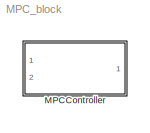
MODEL MPC_block
KIND model
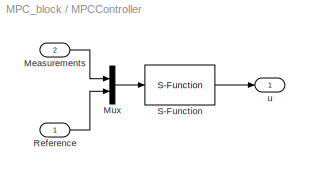
BLOCK [SubSystem] MPCController
  Ports = [2, 1]
  RequestExecContextInheritance = off
  SID = 6
  Variant = off
BLOCK [Inport] MPCController/Measurements
  IconDisplay = Port number
  Port = 2
  SID = 8
BLOCK [Mux] MPCController/Mux
  DisplayOption = bar
  Inputs = 2
  Ports = [2, 1]
  SID = 9
BLOCK [Inport] MPCController/Reference
  IconDisplay = Port number
  SID = 7
BLOCK [S-Function] MPCController/S-Function
  EnableBusSupport = off
  FunctionName = MPCController
  Parameters = md
  Ports = [1, 1]
  SFunctionDeploymentMode = off
  SID = 10
BLOCK [Outport] MPCController/u
  IconDisplay = Port number
  SID = 11
LINE MPCController/Measurements:1 -> MPCController/Mux:1
LINE MPCController/Mux:1 -> MPCController/S-Function:1
LINE MPCController/Reference:1 -> MPCController/Mux:2
LINE MPCController/S-Function:1 -> MPCController/u:1
